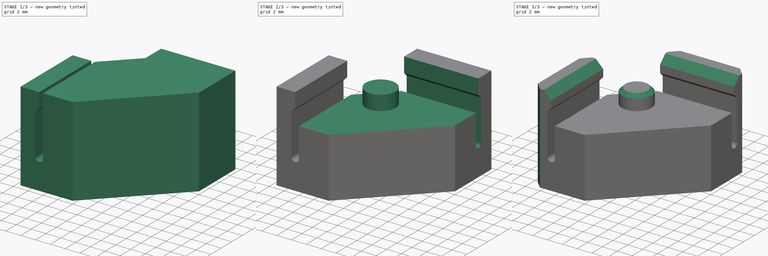
[diagram: build sequence overview — one tinted view per stage of 3, left to right]
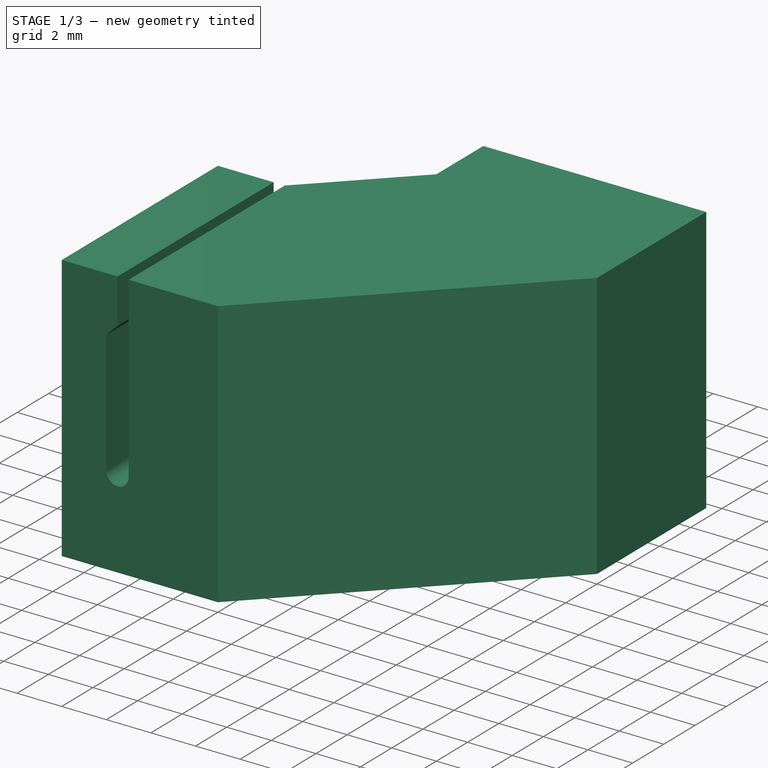
[diagram: stage 1 of 3 — iso view after this stage's code; geometry added in this stage tinted green]
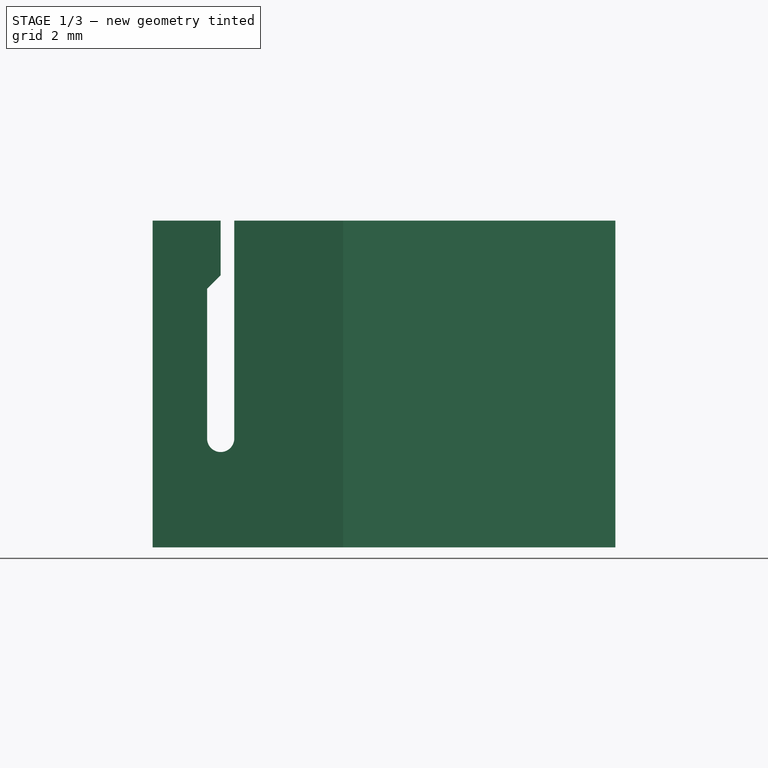
[diagram: stage 1 of 3 — front view after this stage's code; geometry added in this stage tinted green]
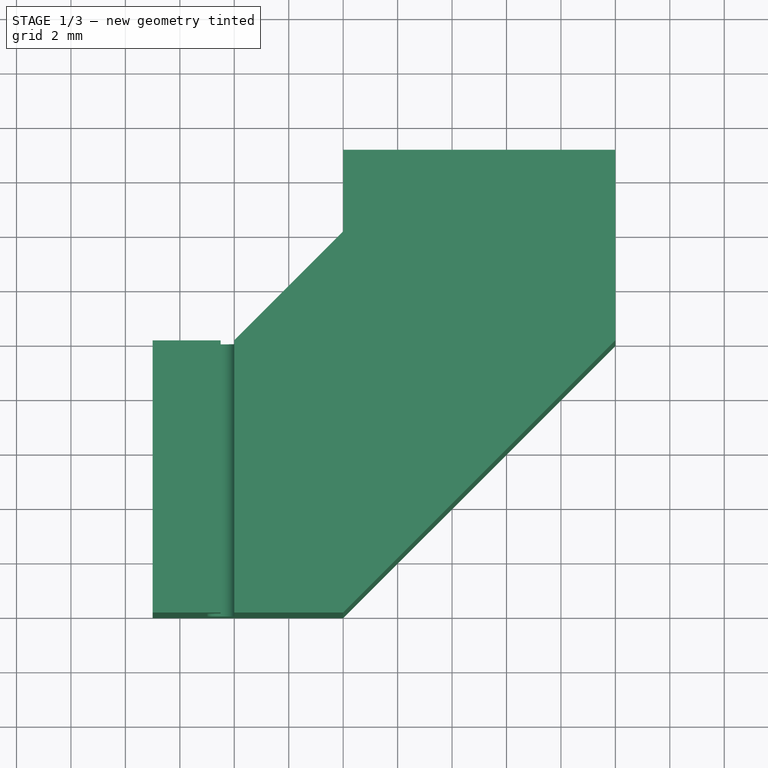
[diagram: stage 1 of 3 — top view after this stage's code; geometry added in this stage tinted green]
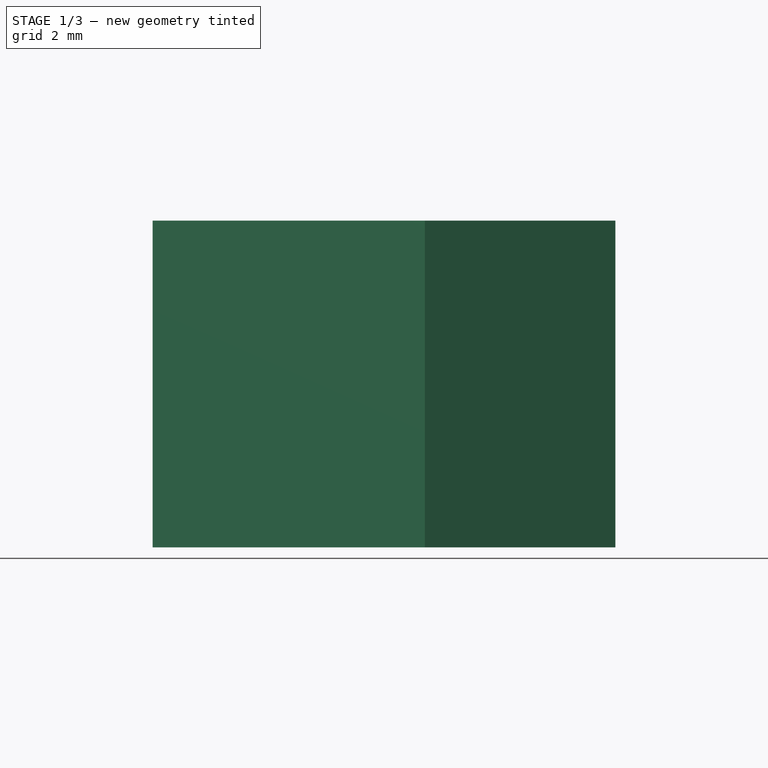
[diagram: stage 1 of 3 — right view after this stage's code; geometry added in this stage tinted green]
FCSTD DOCUMENT  (FreeCAD 0.18.4R)
Label: leiterplattenfüße
License: All rights reserved
LicenseURL: http://en.wikipedia.org/wiki/All_rights_reserved
objects: Sketcher::SketchObject×5, PartDesign::Pocket×3, PartDesign::Pad×2, PartDesign::Chamfer×2, PartDesign::Body×1
note: 18 computed .brp shape members not serialized (recipe doc carries the construction recipe); baked Part::Feature solids carry a one-line shape summary decoded from their .brp

FEATURE [Sketcher::SketchObject] Sketch
  MapMode = 5
  Support = -> [XY_Plane]
  sketch-geometry (8):
    g0: LineSegment StartX=0 StartY=7 StartZ=0 EndX=10 EndY=7 EndZ=0
    g1: LineSegment StartX=10 StartY=7 StartZ=0 EndX=10 EndY=0 EndZ=0
    g2: LineSegment StartX=10 StartY=0 StartZ=0 EndX=0 EndY=-10 EndZ=0
    g3: LineSegment StartX=0 StartY=-10 StartZ=0 EndX=-7 EndY=-10 EndZ=0
    g4: LineSegment StartX=-7 StartY=-10 StartZ=0 EndX=-7 EndY=0 EndZ=0
    g5: LineSegment StartX=-7 StartY=0 StartZ=0 EndX=-4 EndY=0 EndZ=0
    g6: LineSegment StartX=-4 StartY=0 StartZ=0 EndX=0 EndY=4 EndZ=0
    g7: LineSegment StartX=0 StartY=4 StartZ=0 EndX=0 EndY=7 EndZ=0
  constraints (24):
    c: Distance(g0) = 10
    c: Coincident(g1,g2)
    c: Coincident(g2,g3)
    c: Coincident(g3,g4)
    c: Coincident(g0,g1)
    c: Horizontal(g3)
    c: Vertical(g4)
    c: Horizontal(g0)
    c: Vertical(g1)
    c: Vertical(g0,g-1)
    c: Vertical(g-1,g2)
    c: Horizontal(g4,g-1)
    c: Horizontal(g-1,g1)
    c: Distance(g3) = 7
    c: Distance(g4) = 10
    c: Distance(g1) = 7
    c: Coincident(g5,g6)
    c: Coincident(g6,g7)
    c: Coincident(g0,g7)
    c: Vertical(g7)
    c: Horizontal(g5)
    c: Distance(g5) = 3
    c: Distance(g7) = 3
    c: Coincident(g4,g5)
FEATURE [PartDesign::Pad] Pad
  Length = 12
  Length2 = 100
  Profile = -> Sketch
  Type = 0
FEATURE [Sketcher::SketchObject] Sketch001
  ExternalGeometry = -> [Pad]
  MapMode = 5
  Placement = pos=(0,-10,0) rot=(1,0,0;1.5708rad)
  Support = -> [Pad]
  sketch-geometry (6):
    g0: LineSegment StartX=-4.5 StartY=10 StartZ=0 EndX=-4.5 EndY=13.32 EndZ=0
    g1: LineSegment StartX=-4.5 StartY=13.32 StartZ=0 EndX=-4 EndY=13.32 EndZ=0
    g2: LineSegment StartX=-4 StartY=13.32 StartZ=0 EndX=-4 EndY=4 EndZ=0
    g3: LineSegment StartX=-5 StartY=4 StartZ=0 EndX=-5 EndY=9.5 EndZ=0
    g4: ArcOfCircle CenterX=-4.5 CenterY=4 CenterZ=0 NormalX=0 NormalY=0 NormalZ=1 AngleXU=0 Radius=0.5 StartAngle=3.14159 EndAngle=6.28319
    g5: LineSegment StartX=-5 StartY=9.5 StartZ=0 EndX=-4.5 EndY=10 EndZ=0
  constraints (21):
    c: Coincident(g0,g1)
    c: Coincident(g1,g2)
    c: Vertical(g3)
    c: Vertical(g0)
    c: Vertical(g2)
    c: Horizontal(g1)
    c: Coincident(g3,g4)
    c: Coincident(g2,g4)
    c: Horizontal(g2,g3)
    c: Horizontal(g3,g4)
    c: Horizontal(g4,g4)
    c: Horizontal(g4,g4)
    c: DistanceY(g4) = 4
    c: DistanceY(g3) = 9.5
    c: DistanceX(g-4,g3) = 2
    c: Distance(g3,g2) = 1
    c: DistanceY(g1) = 13.32
    c: Coincident(g0,g5)
    c: Coincident(g3,g5)
    c: DistanceX(g3,g0) = 0.5
    c: DistanceY(g3,g0) = 0.5
FEATURE [PartDesign::Pocket] Pocket
  BaseFeature = -> Pad
  Length = 10.1
  Length2 = 100
  Profile = -> Sketch001
  Type = 0
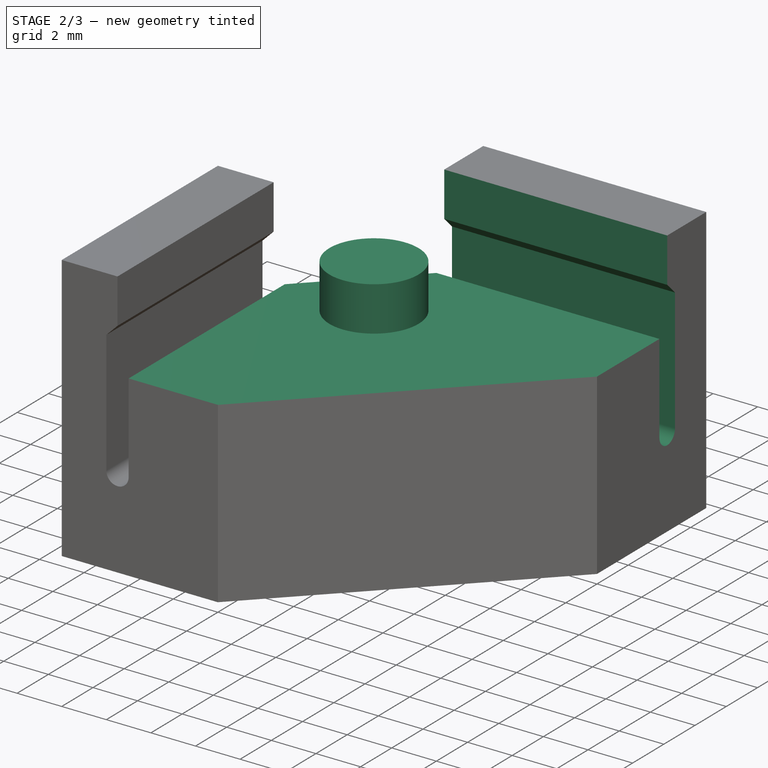
[diagram: stage 2 of 3 — iso view after this stage's code; geometry added in this stage tinted green]
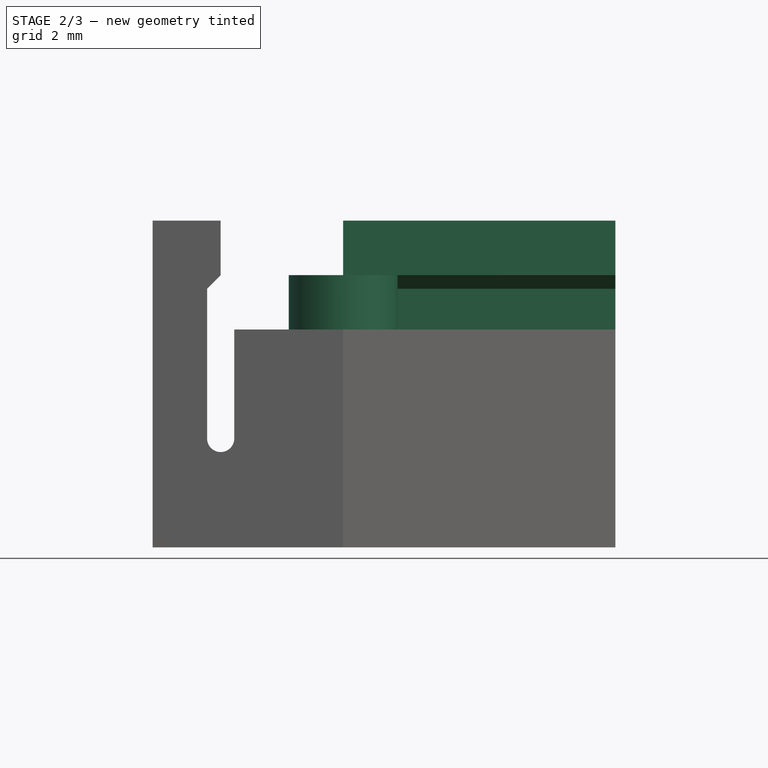
[diagram: stage 2 of 3 — front view after this stage's code; geometry added in this stage tinted green]
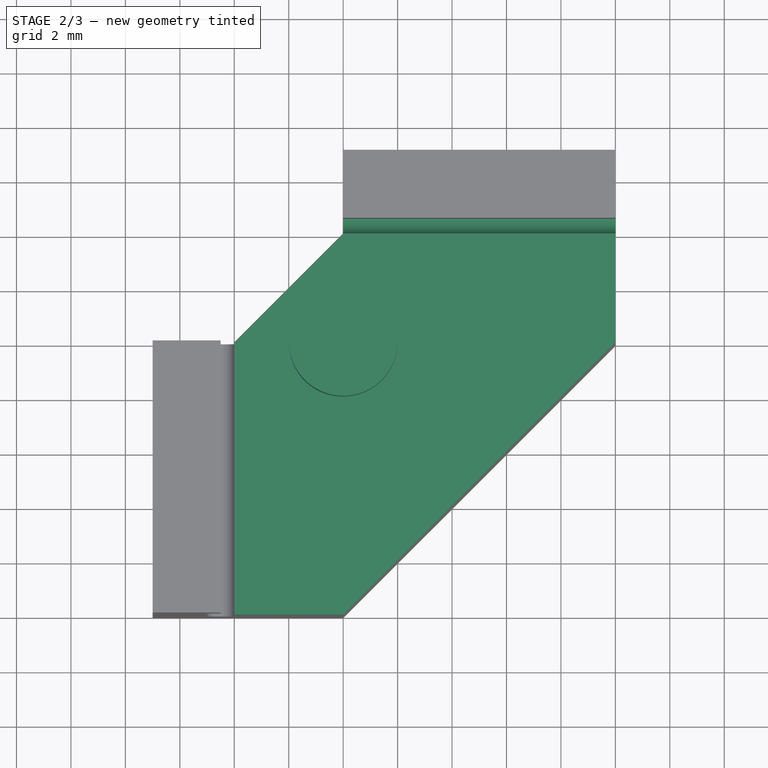
[diagram: stage 2 of 3 — top view after this stage's code; geometry added in this stage tinted green]
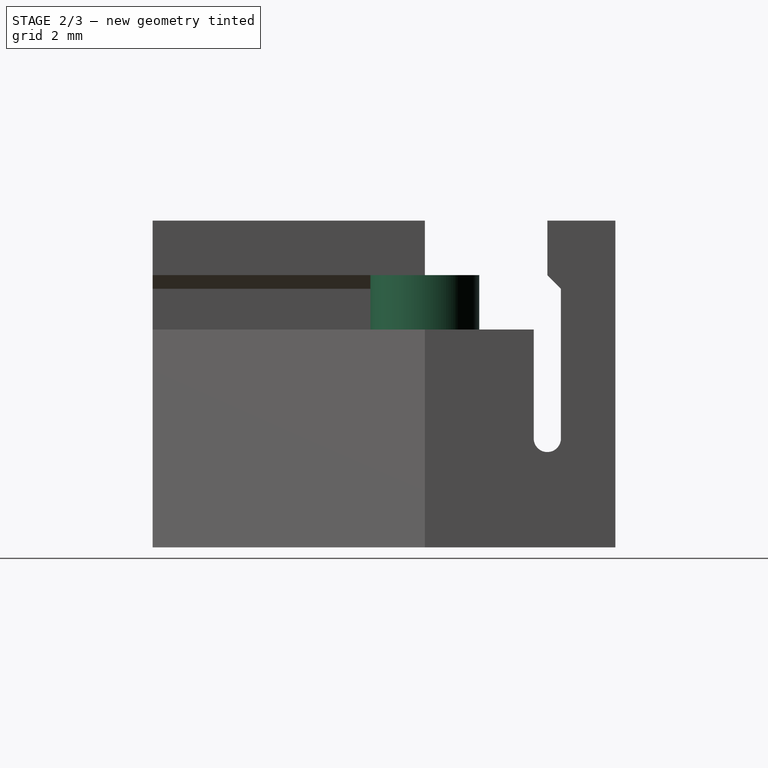
[diagram: stage 2 of 3 — right view after this stage's code; geometry added in this stage tinted green]
FEATURE [Sketcher::SketchObject] Sketch002
  ExternalGeometry = -> [Pocket]
  MapMode = 5
  Placement = pos=(10,0,0) rot=(0.57735,0.57735,0.57735;2.0944rad)
  Support = -> [Pocket]
  sketch-geometry (6):
    g0: LineSegment StartX=4.5 StartY=12.95 StartZ=0 EndX=4.5 EndY=10 EndZ=0
    g1: LineSegment StartX=4.5 StartY=10 StartZ=0 EndX=5 EndY=9.5 EndZ=0
    g2: LineSegment StartX=5 StartY=9.5 StartZ=0 EndX=5 EndY=4 EndZ=0
    g3: LineSegment StartX=4 StartY=4 StartZ=0 EndX=4 EndY=12.95 EndZ=0
    g4: LineSegment StartX=4 StartY=12.95 StartZ=0 EndX=4.5 EndY=12.95 EndZ=0
    g5: ArcOfCircle CenterX=4.5 CenterY=4 CenterZ=0 NormalX=0 NormalY=0 NormalZ=1 AngleXU=0 Radius=0.5 StartAngle=3.14159 EndAngle=6.28319
  constraints (21):
    c: Vertical(g0)
    c: Coincident(g0,g1)
    c: Coincident(g1,g2)
    c: Vertical(g2)
    c: Vertical(g3)
    c: Coincident(g3,g4)
    c: Coincident(g0,g4)
    c: Horizontal(g4)
    c: Coincident(g2,g5)
    c: Coincident(g3,g5)
    c: Horizontal(g2,g3)
    c: Horizontal(g3,g5)
    c: Horizontal(g5,g5)
    c: Horizontal(g5,g5)
    c: DistanceY(g1,g0) = 0.5
    c: DistanceX(g0,g1) = 0.5
    c: DistanceX(g3,g2) = 1
    c: DistanceY(g2) = 4
    c: DistanceY(g3) = 12.95
    c: DistanceY(g1) = 9.5
    c: DistanceX(g1,g-3) = 2
FEATURE [PartDesign::Pocket] Pocket001
  BaseFeature = -> Pocket
  Length = 10.1
  Length2 = 100
  Profile = -> Sketch002
  Type = 0
FEATURE [Sketcher::SketchObject] Sketch003
  MapMode = 5
  Placement = pos=(0,0,12) rot=(0,0,1;0rad)
  Support = -> [Pocket001]
  sketch-geometry (4):
    g0: LineSegment StartX=-4.22089 StartY=4.23107 StartZ=0 EndX=-4.22089 EndY=-10.6848 EndZ=0
    g1: LineSegment StartX=-4.22089 StartY=-10.6848 StartZ=0 EndX=11.621 EndY=-10.6848 EndZ=0
    g2: LineSegment StartX=11.621 StartY=-10.6848 StartZ=0 EndX=11.621 EndY=4.23108 EndZ=0
    g3: LineSegment StartX=11.621 StartY=4.23107 StartZ=0 EndX=-4.22089 EndY=4.23107 EndZ=0
  constraints (8):
    c: Vertical(g0)
    c: Coincident(g0,g1)
    c: Horizontal(g1)
    c: Coincident(g1,g2)
    c: Vertical(g2)
    c: Coincident(g2,g3)
    c: Horizontal(g3)
    c: Coincident(g0,g3)
FEATURE [PartDesign::Pocket] Pocket002
  BaseFeature = -> Pocket001
  Length = 4
  Length2 = 100
  Profile = -> Sketch003
  Type = 0
FEATURE [Sketcher::SketchObject] Sketch004
  MapMode = 5
  Placement = pos=(0,0,8) rot=(0,0,1;0rad)
  Support = -> [Pocket002]
  sketch-geometry (1):
    g0: Circle CenterX=0 CenterY=0 CenterZ=0 NormalX=0 NormalY=0 NormalZ=1 AngleXU=0 Radius=2
  constraints (2):
    c: Coincident(g0,g-1)
    c: Radius(g0) = 2
FEATURE [PartDesign::Pad] Pad001
  BaseFeature = -> Pocket002
  Length = 2
  Length2 = 100
  Profile = -> Sketch004
  Type = 0
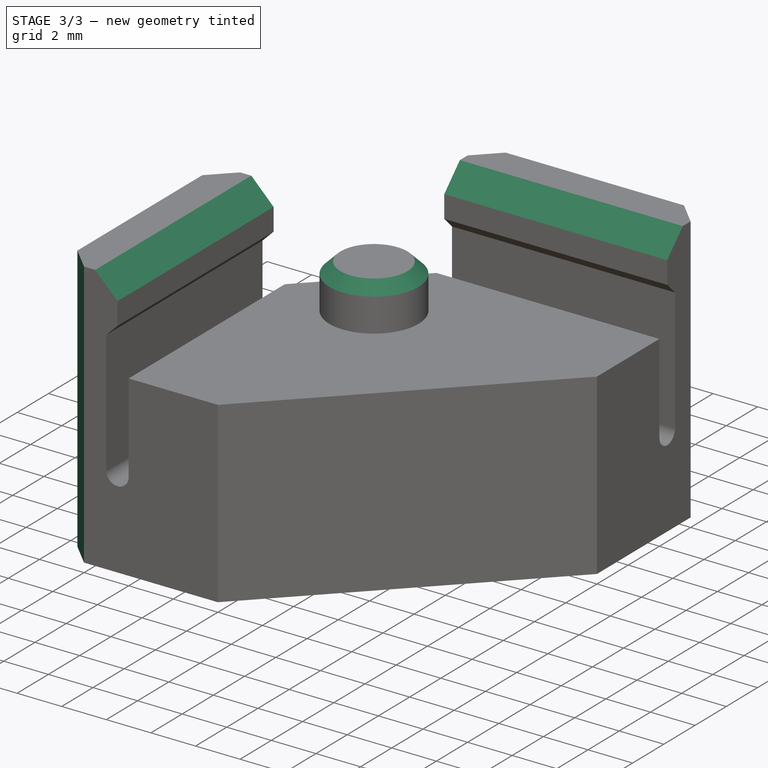
[diagram: stage 3 of 3 — iso view after this stage's code; geometry added in this stage tinted green]
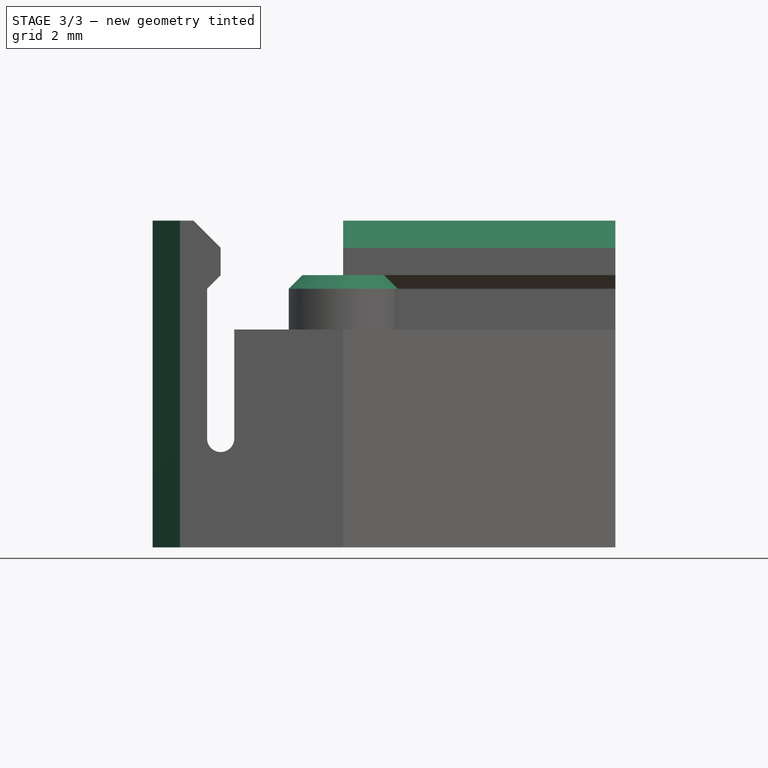
[diagram: stage 3 of 3 — front view after this stage's code; geometry added in this stage tinted green]
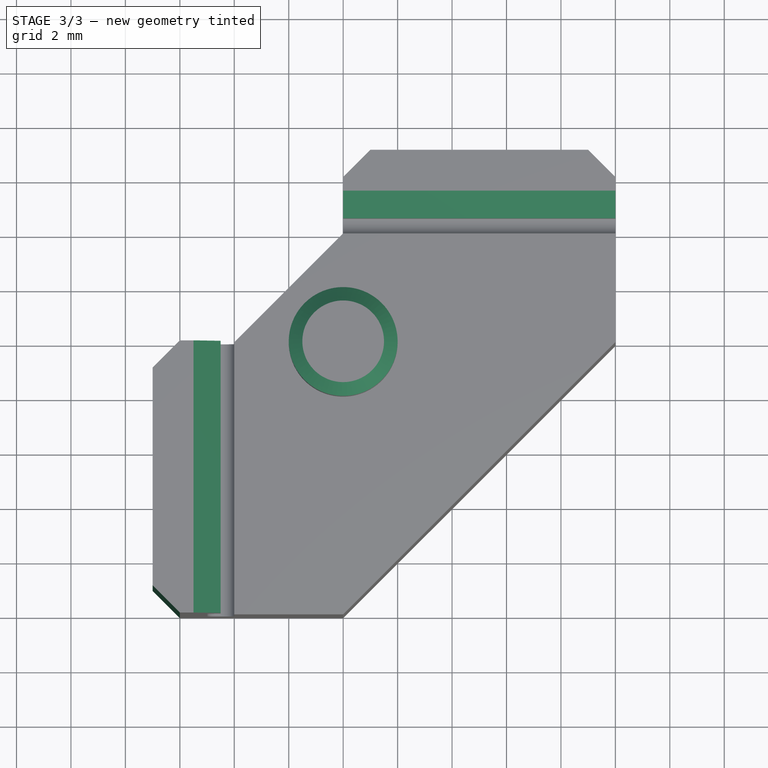
[diagram: stage 3 of 3 — top view after this stage's code; geometry added in this stage tinted green]
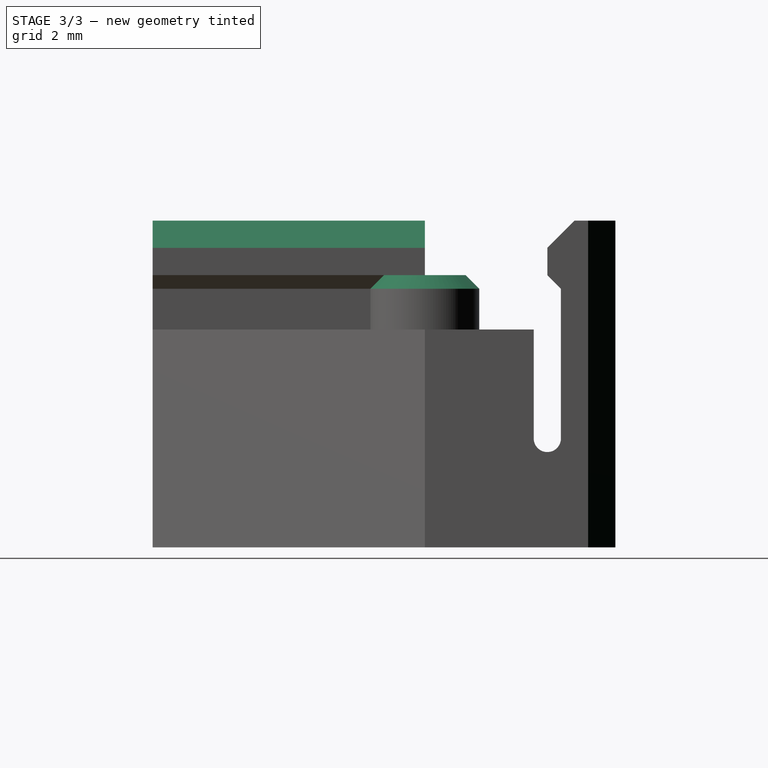
[diagram: stage 3 of 3 — right view after this stage's code; geometry added in this stage tinted green]
FEATURE [PartDesign::Chamfer] Chamfer
  Base = -> Pad001 [Face24]
  BaseFeature = -> Pad001
  Size = 0.5
FEATURE [PartDesign::Chamfer] Chamfer001
  Base = -> Chamfer [Edge30,Edge58,Edge52,Edge20,Edge49,Edge60]
  BaseFeature = -> Chamfer
  Size = 1
FEATURE [PartDesign::Body] Body
  Group = -> [Sketch,Pad,Sketch001,Pocket,Sketch002,Pocket001,Sketch003,Pocket002,Sketch004,Pad001,Chamfer,Chamfer001]
  Origin = -> Origin
  Tip = -> Chamfer001
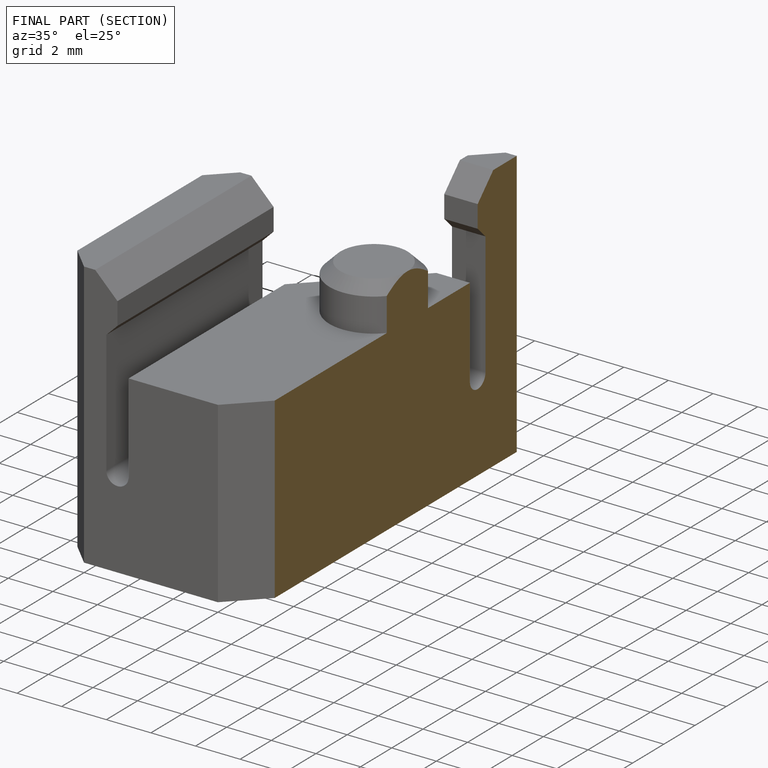
[diagram: finished part — half-section view (interior)]
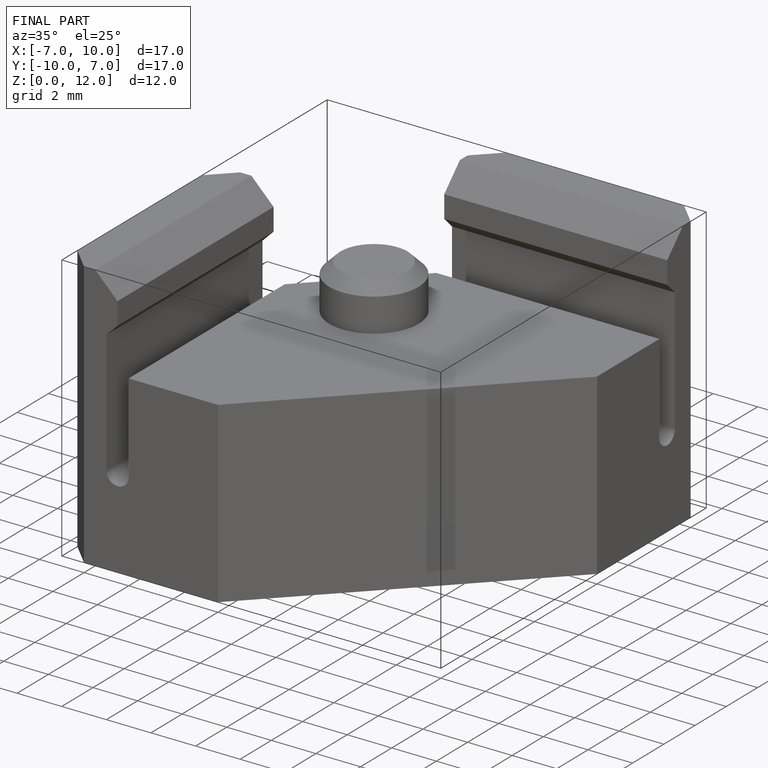
[diagram: finished part — iso view with bounding-box wireframe]
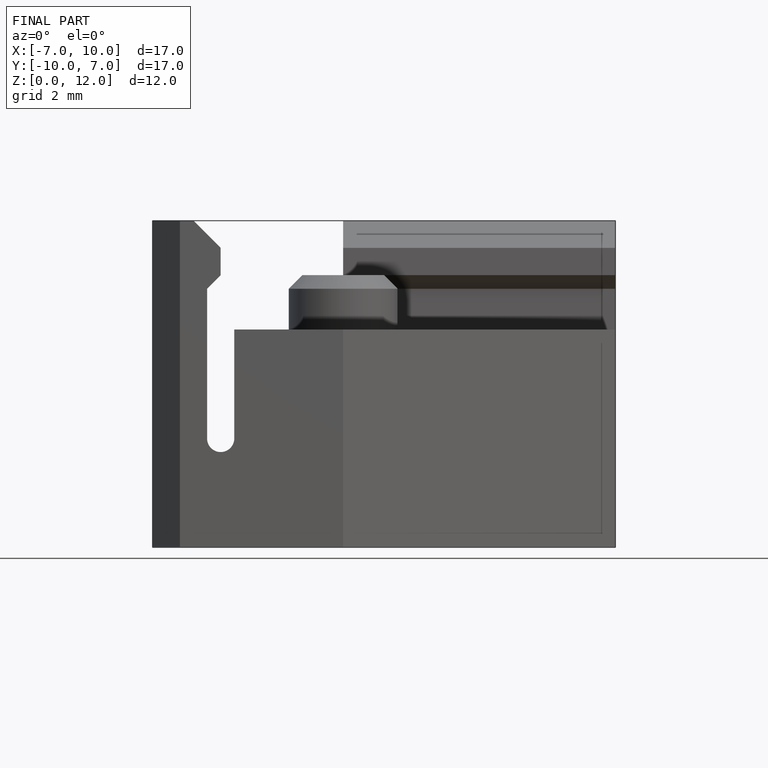
[diagram: finished part — front view with bounding-box wireframe]
